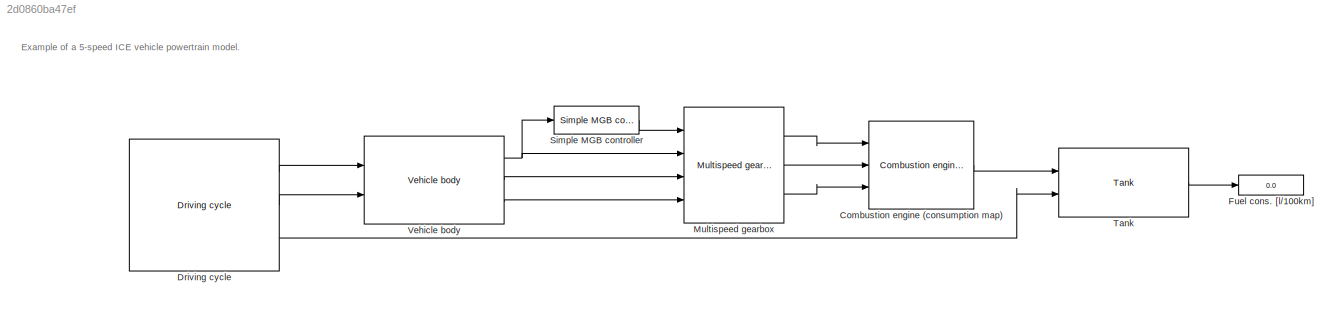
MODEL slx_2d0860ba47ef
KIND model
CONFIG AbsTol = auto
CONFIG EnableMultiTasking = off
CONFIG FixedStep = 1
CONFIG MaxStep = auto
CONFIG MinStep = auto
CONFIG RelTol = 1e-3
CONFIG SampleTimeConstraint = Unconstrained
CONFIG SolverName = FixedStepAuto
CONFIG StartTime = 0.0
CONFIG StopTime = 1800
BLOCK [Reference] Combustion engine (consumption map)  REF=EnergyConverters/Combustion engine 
(consumption map)
  Ports = [3, 1]
  SourceBlock = EnergyConverters/Combustion engine \n(consumption map)
  SourceProductName = QSS TU/e Toolbox
  SourceType = Combustion Engine (based on consumption map)
  Tag = combustion engine
BLOCK [Reference] Driving cycle  REF=DrivingCycle/Driving cycle
  Ports = [0, 3]
  SourceBlock = DrivingCycle/Driving cycle
  SourceProductName = QSS TU/e 4AT030
  SourceType = Driving cycle
BLOCK [Display] Fuel cons. [l//100km]
  Decimation = 1
  Ports = [1]
BLOCK [Reference] Multispeed gearbox  REF=GearSystems/Multispeed gearbox
  Ports = [4, 3]
  SourceBlock = GearSystems/Multispeed gearbox
  SourceProductName = QSS TU/e Toolbox
  SourceType = Manual Gear Box
  Tag = transmission
BLOCK [Reference] Simple MGB controller  REF=GearSystemsControl/Simple MGB controller
  NameLocation = top
  Ports = [1, 1]
  SourceBlock = GearSystemsControl/Simple MGB controller
  SourceProductName = QSS TU/e 4AT030
  SourceType = Simple MGB controller
BLOCK [Reference] Tank  REF=EnergyStorage/Tank
  Ports = [2, 1]
  SourceBlock = EnergyStorage/Tank
  SourceProductName = QSS TU/e 4AT030
  SourceType = Tank
  Tag = tank
BLOCK [Reference] Vehicle body  REF=VehicleBody/Vehicle body
  Ports = [2, 3]
  SourceBlock = VehicleBody/Vehicle body
  SourceProductName = QSS TU/e 4AT030
  SourceType = Vehicle body
ANNOTATION (root): Example of a 5-speed ICE vehicle powertrain model.
LINE Combustion engine (consumption map):1 -> Tank:1
LINE Driving cycle:1 -> Vehicle body:1
LINE Driving cycle:2 -> Vehicle body:2
LINE Driving cycle:3 -> Tank:2
LINE Multispeed gearbox:1 -> Combustion engine (consumption map):1
LINE Multispeed gearbox:2 -> Combustion engine (consumption map):2
LINE Multispeed gearbox:3 -> Combustion engine (consumption map):3
LINE Simple MGB controller:1 -> Multispeed gearbox:1
LINE Tank:1 -> Fuel cons. [l//100km]:1
NET Vehicle body:1 -> Multispeed gearbox:2, Simple MGB controller:1
LINE Vehicle body:2 -> Multispeed gearbox:3
LINE Vehicle body:3 -> Multispeed gearbox:4
note: NET lines group one-source signal fan-out (src -> all destinations, sorted); 1:1 wires keep LINE
